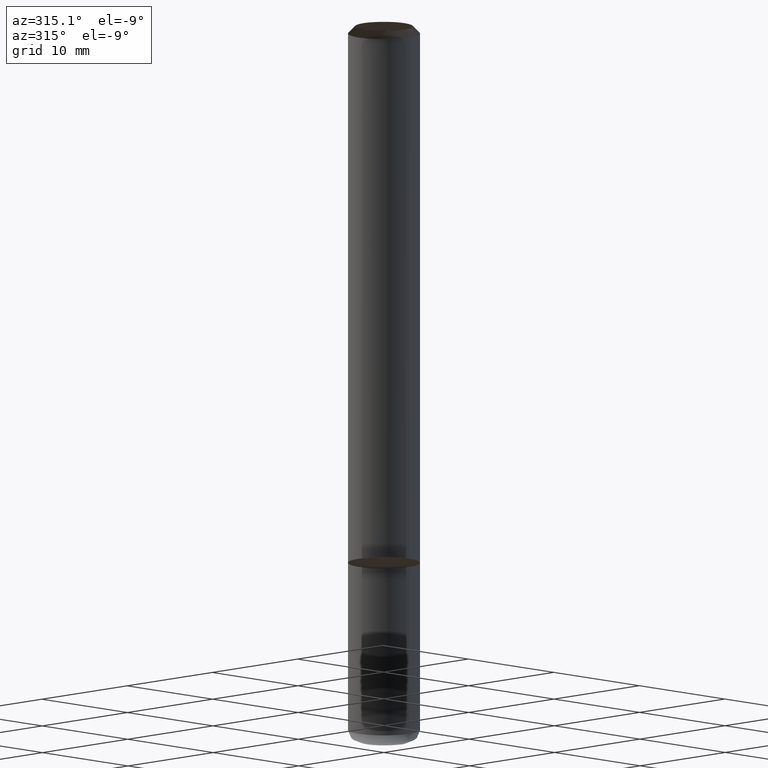
[diagram: clean part render]
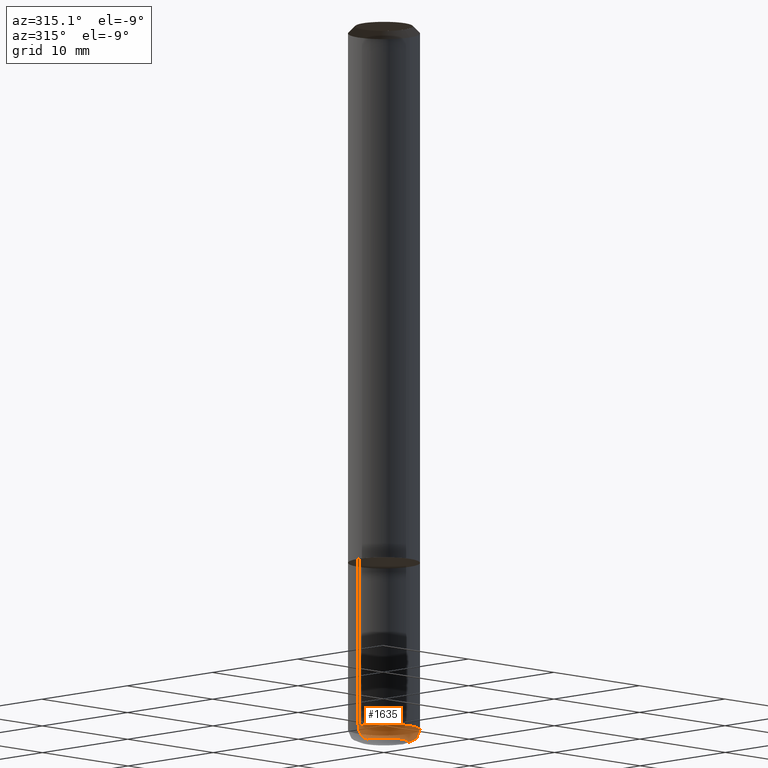
[diagram: same view with one face highlighted and labeled with its STEP entity id]
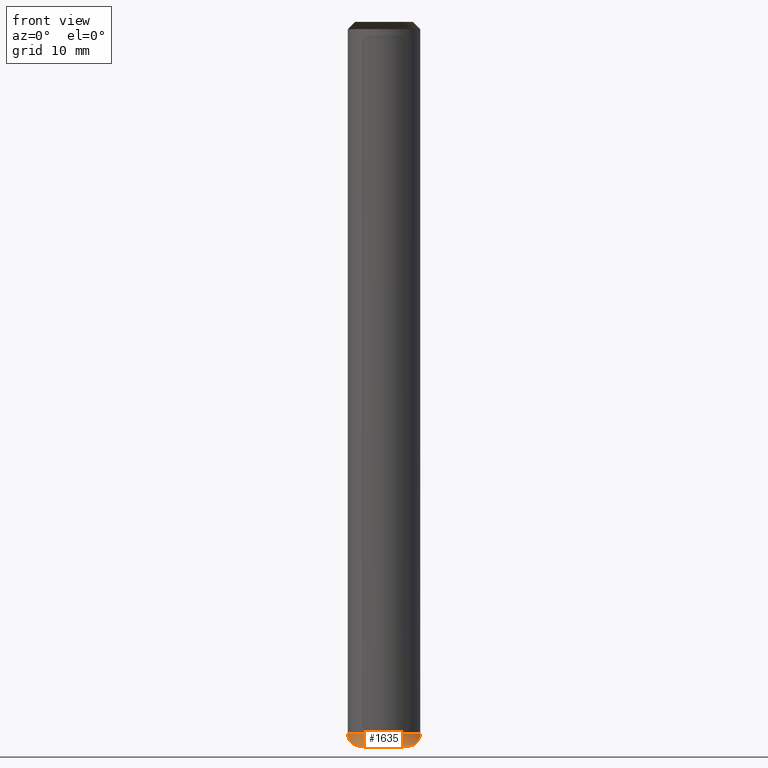
[diagram: same view with one face highlighted and labeled with its STEP entity id]
A machine part, auxiliary view. The second image highlights one B-rep face of the part: STEP entity #1635.
A second angle (front view) of the same face is appended — the face is thin or edge-on in the first view.
In plain terms, the highlighted face is a freeform B-spline surface patch.
Its self-contained STEP definition (entity closure, byte-faithful):
#1453=CARTESIAN_POINT('',(2.0,0.0,-15.0));
#1457=CARTESIAN_POINT('',(-2.0,0.0,-15.0));
#1458=CARTESIAN_POINT('',(2.414213562373,0.0,-15.0));
#1462=CARTESIAN_POINT('',(-2.414213562373,0.0,-15.0));
#1463=CARTESIAN_POINT('',(2.707106781187,0.0,-14.707106781187));
#1467=CARTESIAN_POINT('',(-2.707106781187,0.0,-14.707106781187));
#1468=CARTESIAN_POINT('',(3.0,0.0,-14.414213562373));
#1472=CARTESIAN_POINT('',(-3.0,0.0,-14.414213562373));
#1473=CARTESIAN_POINT('',(3.0,0.0,-14.0));
#1477=CARTESIAN_POINT('',(-3.0,0.0,-14.0));
#1484=CARTESIAN_POINT('',(-2.0,-2.0,-15.0));
#1485=CARTESIAN_POINT('',(0.0,-2.0,-15.0));
#1486=CARTESIAN_POINT('',(2.0,-2.0,-15.0));
#1487=CARTESIAN_POINT('',(-2.414213562373,-2.414213562373,-15.0));
#1488=CARTESIAN_POINT('',(0.0,-2.414213562373,-15.0));
#1489=CARTESIAN_POINT('',(2.414213562373,-2.414213562373,-15.0));
#1490=CARTESIAN_POINT('',(-2.707106781187,-2.707106781187,-14.707106781187));
#1491=CARTESIAN_POINT('',(0.0,-2.707106781187,-14.707106781187));
#1492=CARTESIAN_POINT('',(2.707106781187,-2.707106781187,-14.707106781187));
#1493=CARTESIAN_POINT('',(-3.0,-3.0,-14.414213562373));
#1494=CARTESIAN_POINT('',(0.0,-3.0,-14.414213562373));
#1495=CARTESIAN_POINT('',(3.0,-3.0,-14.414213562373));
#1496=CARTESIAN_POINT('',(-3.0,-3.0,-14.0));
#1497=CARTESIAN_POINT('',(0.0,-3.0,-14.0));
#1498=CARTESIAN_POINT('',(3.0,-3.0,-14.0));
#1616=(
BOUNDED_SURFACE()
B_SPLINE_SURFACE(2,2,(
(#1457,#1484,#1485,#1486,#1453),
(#1462,#1487,#1488,#1489,#1458),
(#1467,#1490,#1491,#1492,#1463),
(#1472,#1493,#1494,#1495,#1468),
(#1477,#1496,#1497,#1498,#1473)
), .UNSPECIFIED.,.F.,.F.,.F.)
B_SPLINE_SURFACE_WITH_KNOTS((3,2,3),(3,2,3),(
0.0,0.5,1.0),(
0.0,0.5,1.0), .UNSPECIFIED.)
GEOMETRIC_REPRESENTATION_ITEM()
RATIONAL_B_SPLINE_SURFACE(((1.0,0.707106781187,1.0,0.707106781187,1.0),
(0.923879532511,0.653281482438,0.923879532511,0.653281482438,0.923879532511),
(1.0,0.707106781187,1.0,0.707106781187,1.0),
(0.923879532511,0.653281482438,0.923879532511,0.653281482438,0.923879532511),
(1.0,0.707106781187,1.0,0.707106781187,1.0)
))
REPRESENTATION_ITEM('')
SURFACE()
);
#1617=(
BOUNDED_CURVE()
B_SPLINE_CURVE(2,(#1477,#1472,#1467,#1462,#1457),.UNSPECIFIED.,.F.,.F.)
B_SPLINE_CURVE_WITH_KNOTS((3,2,3),
(0.0,0.5,1.0),.UNSPECIFIED.)
CURVE()
GEOMETRIC_REPRESENTATION_ITEM()
RATIONAL_B_SPLINE_CURVE((1.0,0.923879532511,1.0,0.923879532511,1.0))
REPRESENTATION_ITEM('')
);
#1618=(
BOUNDED_CURVE()
B_SPLINE_CURVE(2,(#1457,#1484,#1485,#1486,#1453),.UNSPECIFIED.,.F.,.F.)
B_SPLINE_CURVE_WITH_KNOTS((3,2,3),
(0.0,0.5,1.0),.UNSPECIFIED.)
CURVE()
GEOMETRIC_REPRESENTATION_ITEM()
RATIONAL_B_SPLINE_CURVE((1.0,0.707106781187,1.0,0.707106781187,1.0))
REPRESENTATION_ITEM('')
);
#1619=(
BOUNDED_CURVE()
B_SPLINE_CURVE(2,(#1453,#1458,#1463,#1468,#1473),.UNSPECIFIED.,.F.,.F.)
B_SPLINE_CURVE_WITH_KNOTS((3,2,3),
(0.0,0.5,1.0),.UNSPECIFIED.)
CURVE()
GEOMETRIC_REPRESENTATION_ITEM()
RATIONAL_B_SPLINE_CURVE((1.0,0.923879532511,1.0,0.923879532511,1.0))
REPRESENTATION_ITEM('')
);
#1620=(
BOUNDED_CURVE()
B_SPLINE_CURVE(2,(#1473,#1498,#1497,#1496,#1477),.UNSPECIFIED.,.F.,.F.)
B_SPLINE_CURVE_WITH_KNOTS((3,2,3),
(0.0,0.5,1.0),.UNSPECIFIED.)
CURVE()
GEOMETRIC_REPRESENTATION_ITEM()
RATIONAL_B_SPLINE_CURVE((1.0,0.707106781187,1.0,0.707106781187,1.0))
REPRESENTATION_ITEM('')
);
#1621=VERTEX_POINT('',#1453);
#1622=VERTEX_POINT('',#1457);
#1623=VERTEX_POINT('',#1473);
#1624=VERTEX_POINT('',#1477);
#1625=EDGE_CURVE('',#1624,#1622,#1617,.T.);
#1626=EDGE_CURVE('',#1622,#1621,#1618,.T.);
#1627=EDGE_CURVE('',#1621,#1623,#1619,.T.);
#1628=EDGE_CURVE('',#1623,#1624,#1620,.T.);
#1629=ORIENTED_EDGE('',*,*,#1625,.T.);
#1630=ORIENTED_EDGE('',*,*,#1626,.T.);
#1631=ORIENTED_EDGE('',*,*,#1627,.T.);
#1632=ORIENTED_EDGE('',*,*,#1628,.T.);
#1633=EDGE_LOOP('',(#1629,#1630,#1631,#1632));
#1634=FACE_OUTER_BOUND('',#1633,.T.);
#1635=ADVANCED_FACE('',(#1634),#1616,.T.);